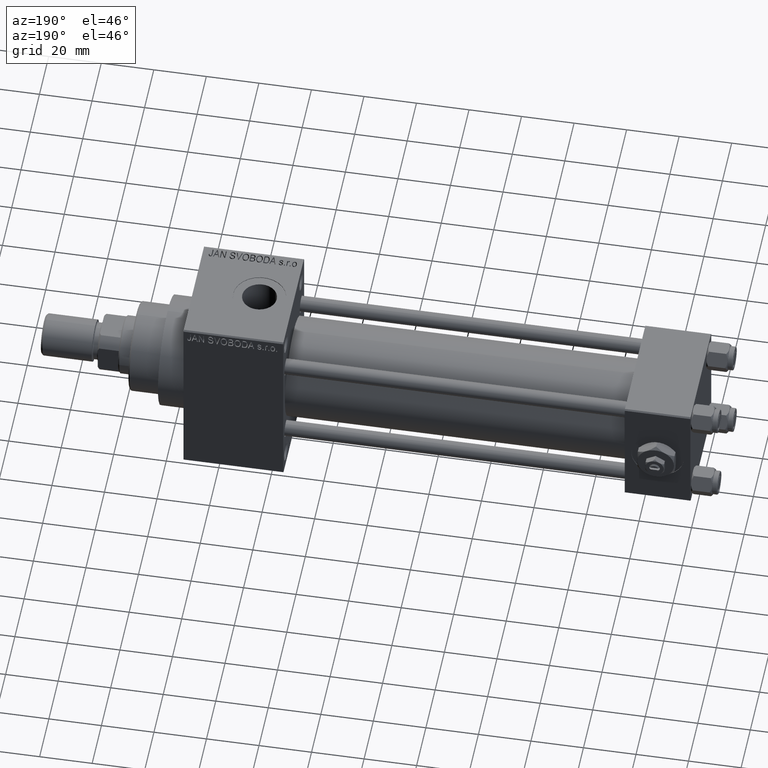
[diagram: clean part render]
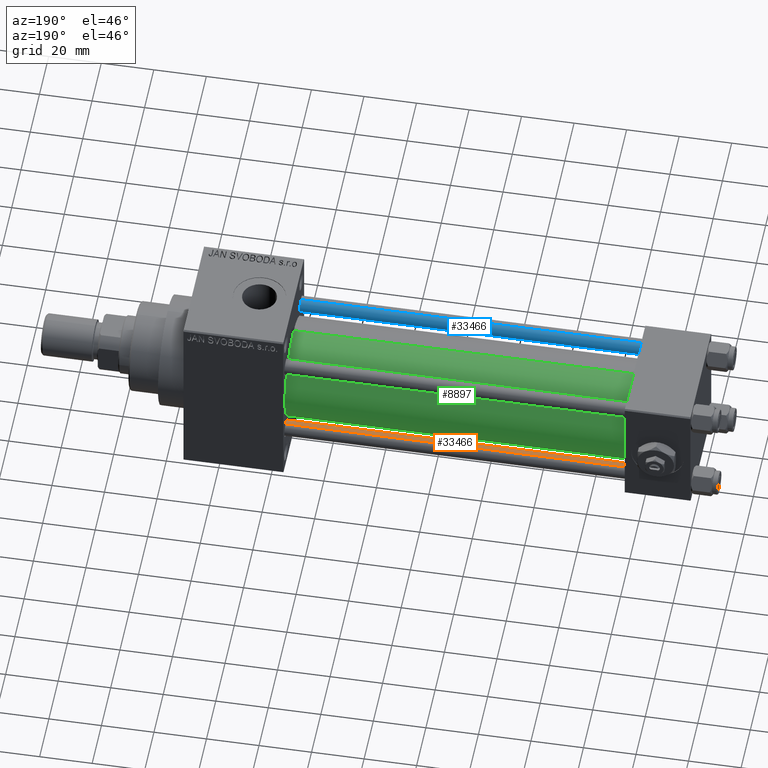
[diagram: same view with three faces highlighted in distinct colors, each labeled with its STEP entity id]
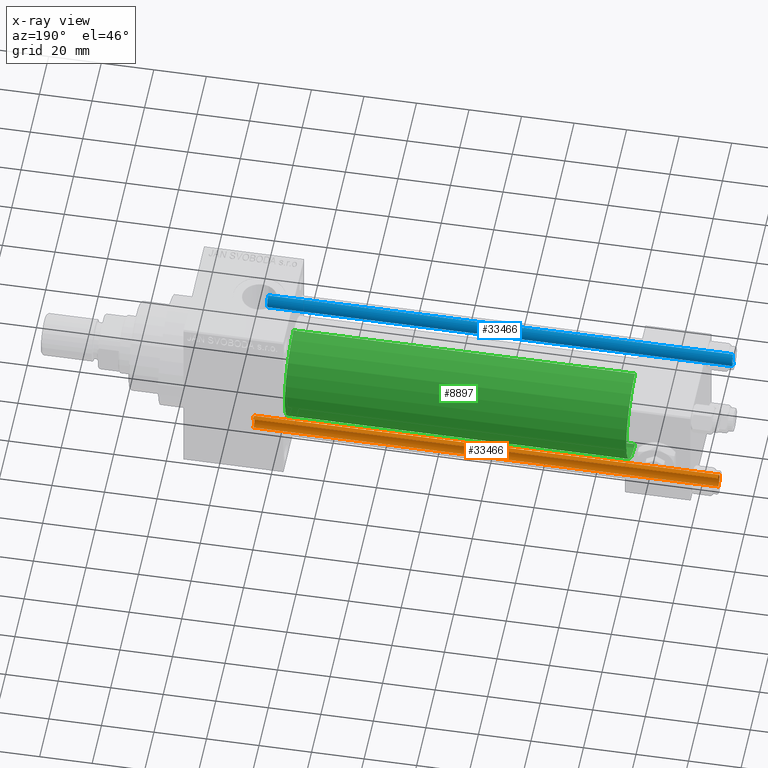
[diagram: x-ray of the same camera — body ghosted, the three highlighted faces saturated]
A machine part, auxiliary view with three faces highlighted in distinct colors.
The next image is the same camera in x-ray (body ghosted, the three faces saturated) — at least one of them is partly hidden behind the body in this view.
Their STEP definitions:

[orange] entity #33466 — the highlighted cylindrical surface (edge-blend (fillet) strip) has radius 3 mm, axis along (1, -0, 0).
#665 = VECTOR ( 'NONE', #10655, 1000.000000000000000 ) ;
#1277 = DIRECTION ( 'NONE',  ( -0.000000000000000000, -0.000000000000000000, -1.000000000000000000 ) ) ;
#1287 = CARTESIAN_POINT ( 'NONE',  ( 3.000000000000000444, 3.673940397442060361E-16, 177.5000000000000000 ) ) ;
#6168 = ORIENTED_EDGE ( 'NONE', *, *, #37607, .F. ) ;
#7503 = EDGE_CURVE ( 'NONE', #31874, #31880, #43418, .T. ) ;
#8998 = EDGE_CURVE ( 'NONE', #11545, #31874, #35223, .T. ) ;
#10655 = DIRECTION ( 'NONE',  ( -0.000000000000000000, -0.000000000000000000, -1.000000000000000000 ) ) ;
#11545 = VERTEX_POINT ( 'NONE', #33688 ) ;
#11826 = FACE_OUTER_BOUND ( 'NONE', #38154, .T. ) ;
#17153 = VERTEX_POINT ( 'NONE', #1287 ) ;
#19174 = ORIENTED_EDGE ( 'NONE', *, *, #7503, .T. ) ;
#19999 = DIRECTION ( 'NONE',  ( -1.000000000000000000, 0.000000000000000000, 0.000000000000000000 ) ) ;
#20246 = CIRCLE ( 'NONE', #47999, 3.000000000000000444 ) ;
#22060 = CARTESIAN_POINT ( 'NONE',  ( 3.000000000000000444, 3.673940397442060361E-16, 178.0000000000000000 ) ) ;
#25037 = AXIS2_PLACEMENT_3D ( 'NONE', #34885, #46297, #19999 ) ;
#27648 = DIRECTION ( 'NONE',  ( 1.000000000000000000, 0.000000000000000000, 0.000000000000000000 ) ) ;
#27780 = CARTESIAN_POINT ( 'NONE',  ( -3.000000000000000444, 0.000000000000000000, 178.0000000000000000 ) ) ;
#31048 = ORIENTED_EDGE ( 'NONE', *, *, #8998, .T. ) ;
#31874 = VERTEX_POINT ( 'NONE', #44043 ) ;
#31880 = VERTEX_POINT ( 'NONE', #36831 ) ;
#32500 = EDGE_CURVE ( 'NONE', #17153, #11545, #20246, .T. ) ;
#33466 = ADVANCED_FACE ( 'NONE', ( #11826 ), #42330, .T. ) ;
#33688 = CARTESIAN_POINT ( 'NONE',  ( -3.000000000000000444, 0.000000000000000000, 177.5000000000000000 ) ) ;
#34885 = CARTESIAN_POINT ( 'NONE',  ( 0.000000000000000000, 0.000000000000000000, 178.0000000000000000 ) ) ;
#35223 = LINE ( 'NONE', #27780, #44282 ) ;
#35335 = CARTESIAN_POINT ( 'NONE',  ( 0.000000000000000000, 0.000000000000000000, 0.5000000000000281997 ) ) ;
#36831 = CARTESIAN_POINT ( 'NONE',  ( 3.000000000000000444, 3.673940397442060361E-16, 0.5000000000000281997 ) ) ;
#37607 = EDGE_CURVE ( 'NONE', #17153, #31880, #40189, .T. ) ;
#38154 = EDGE_LOOP ( 'NONE', ( #6168, #44777, #31048, #19174 ) ) ;
#40189 = LINE ( 'NONE', #22060, #665 ) ;
#40263 = AXIS2_PLACEMENT_3D ( 'NONE', #35335, #43033, #27648 ) ;
#41331 = DIRECTION ( 'NONE',  ( 1.000000000000000000, 0.000000000000000000, 0.000000000000000000 ) ) ;
#42330 = CYLINDRICAL_SURFACE ( 'NONE', #25037, 3.000000000000000444 ) ;
#43033 = DIRECTION ( 'NONE',  ( -0.000000000000000000, -0.000000000000000000, 1.000000000000000000 ) ) ;
#43418 = CIRCLE ( 'NONE', #40263, 3.000000000000000444 ) ;
#44043 = CARTESIAN_POINT ( 'NONE',  ( -3.000000000000000444, 0.000000000000000000, 0.5000000000000281997 ) ) ;
#44282 = VECTOR ( 'NONE', #1277, 1000.000000000000000 ) ;
#44777 = ORIENTED_EDGE ( 'NONE', *, *, #32500, .T. ) ;
#45066 = CARTESIAN_POINT ( 'NONE',  ( 0.000000000000000000, 0.000000000000000000, 177.5000000000000000 ) ) ;
#46297 = DIRECTION ( 'NONE',  ( -0.000000000000000000, -0.000000000000000000, -1.000000000000000000 ) ) ;
#47999 = AXIS2_PLACEMENT_3D ( 'NONE', #45066, #49026, #41331 ) ;
#49026 = DIRECTION ( 'NONE',  ( 0.000000000000000000, 0.000000000000000000, -1.000000000000000000 ) ) ;

[blue] entity #33466 — the highlighted cylindrical surface (edge-blend (fillet) strip) has radius 3 mm, axis along (1, 0, 0).
#665 = VECTOR ( 'NONE', #10655, 1000.000000000000000 ) ;
#1277 = DIRECTION ( 'NONE',  ( -0.000000000000000000, -0.000000000000000000, -1.000000000000000000 ) ) ;
#1287 = CARTESIAN_POINT ( 'NONE',  ( 3.000000000000000444, 3.673940397442060361E-16, 177.5000000000000000 ) ) ;
#6168 = ORIENTED_EDGE ( 'NONE', *, *, #37607, .F. ) ;
#7503 = EDGE_CURVE ( 'NONE', #31874, #31880, #43418, .T. ) ;
#8998 = EDGE_CURVE ( 'NONE', #11545, #31874, #35223, .T. ) ;
#10655 = DIRECTION ( 'NONE',  ( -0.000000000000000000, -0.000000000000000000, -1.000000000000000000 ) ) ;
#11545 = VERTEX_POINT ( 'NONE', #33688 ) ;
#11826 = FACE_OUTER_BOUND ( 'NONE', #38154, .T. ) ;
#17153 = VERTEX_POINT ( 'NONE', #1287 ) ;
#19174 = ORIENTED_EDGE ( 'NONE', *, *, #7503, .T. ) ;
#19999 = DIRECTION ( 'NONE',  ( -1.000000000000000000, 0.000000000000000000, 0.000000000000000000 ) ) ;
#20246 = CIRCLE ( 'NONE', #47999, 3.000000000000000444 ) ;
#22060 = CARTESIAN_POINT ( 'NONE',  ( 3.000000000000000444, 3.673940397442060361E-16, 178.0000000000000000 ) ) ;
#25037 = AXIS2_PLACEMENT_3D ( 'NONE', #34885, #46297, #19999 ) ;
#27648 = DIRECTION ( 'NONE',  ( 1.000000000000000000, 0.000000000000000000, 0.000000000000000000 ) ) ;
#27780 = CARTESIAN_POINT ( 'NONE',  ( -3.000000000000000444, 0.000000000000000000, 178.0000000000000000 ) ) ;
#31048 = ORIENTED_EDGE ( 'NONE', *, *, #8998, .T. ) ;
#31874 = VERTEX_POINT ( 'NONE', #44043 ) ;
#31880 = VERTEX_POINT ( 'NONE', #36831 ) ;
#32500 = EDGE_CURVE ( 'NONE', #17153, #11545, #20246, .T. ) ;
#33466 = ADVANCED_FACE ( 'NONE', ( #11826 ), #42330, .T. ) ;
#33688 = CARTESIAN_POINT ( 'NONE',  ( -3.000000000000000444, 0.000000000000000000, 177.5000000000000000 ) ) ;
#34885 = CARTESIAN_POINT ( 'NONE',  ( 0.000000000000000000, 0.000000000000000000, 178.0000000000000000 ) ) ;
#35223 = LINE ( 'NONE', #27780, #44282 ) ;
#35335 = CARTESIAN_POINT ( 'NONE',  ( 0.000000000000000000, 0.000000000000000000, 0.5000000000000281997 ) ) ;
#36831 = CARTESIAN_POINT ( 'NONE',  ( 3.000000000000000444, 3.673940397442060361E-16, 0.5000000000000281997 ) ) ;
#37607 = EDGE_CURVE ( 'NONE', #17153, #31880, #40189, .T. ) ;
#38154 = EDGE_LOOP ( 'NONE', ( #6168, #44777, #31048, #19174 ) ) ;
#40189 = LINE ( 'NONE', #22060, #665 ) ;
#40263 = AXIS2_PLACEMENT_3D ( 'NONE', #35335, #43033, #27648 ) ;
#41331 = DIRECTION ( 'NONE',  ( 1.000000000000000000, 0.000000000000000000, 0.000000000000000000 ) ) ;
#42330 = CYLINDRICAL_SURFACE ( 'NONE', #25037, 3.000000000000000444 ) ;
#43033 = DIRECTION ( 'NONE',  ( -0.000000000000000000, -0.000000000000000000, 1.000000000000000000 ) ) ;
#43418 = CIRCLE ( 'NONE', #40263, 3.000000000000000444 ) ;
#44043 = CARTESIAN_POINT ( 'NONE',  ( -3.000000000000000444, 0.000000000000000000, 0.5000000000000281997 ) ) ;
#44282 = VECTOR ( 'NONE', #1277, 1000.000000000000000 ) ;
#44777 = ORIENTED_EDGE ( 'NONE', *, *, #32500, .T. ) ;
#45066 = CARTESIAN_POINT ( 'NONE',  ( 0.000000000000000000, 0.000000000000000000, 177.5000000000000000 ) ) ;
#46297 = DIRECTION ( 'NONE',  ( -0.000000000000000000, -0.000000000000000000, -1.000000000000000000 ) ) ;
#47999 = AXIS2_PLACEMENT_3D ( 'NONE', #45066, #49026, #41331 ) ;
#49026 = DIRECTION ( 'NONE',  ( 0.000000000000000000, 0.000000000000000000, -1.000000000000000000 ) ) ;

[green] entity #8897 — the highlighted cylindrical surface (partial cylindrical patch) has radius 19 mm, axis along (-1, -0, -0).
#2282 = CARTESIAN_POINT ( 'NONE',  ( 24.99999999999999289, -2.752562955852396712E-16, -19.00000000000000000 ) ) ;
#2998 = DIRECTION ( 'NONE',  ( -1.000000000000000000, -0.000000000000000000, -0.000000000000000000 ) ) ;
#3240 = CIRCLE ( 'NONE', #46778, 19.00000000000000000 ) ;
#5572 = CIRCLE ( 'NONE', #33275, 19.00000000000000000 ) ;
#7111 = ORIENTED_EDGE ( 'NONE', *, *, #46465, .F. ) ;
#7375 = VERTEX_POINT ( 'NONE', #20697 ) ;
#8862 = ORIENTED_EDGE ( 'NONE', *, *, #12198, .T. ) ;
#8897 = ADVANCED_FACE ( 'NONE', ( #9432 ), #43163, .T. ) ;
#9432 = FACE_OUTER_BOUND ( 'NONE', #29609, .T. ) ;
#10533 = VERTEX_POINT ( 'NONE', #32034 ) ;
#11881 = VECTOR ( 'NONE', #37478, 1000.000000000000000 ) ;
#12198 = EDGE_CURVE ( 'NONE', #39570, #10533, #5572, .T. ) ;
#12669 = CARTESIAN_POINT ( 'NONE',  ( 155.0000000000000000, -2.602085213965210642E-15, 0.000000000000000000 ) ) ;
#13046 = EDGE_CURVE ( 'NONE', #7375, #14056, #3240, .T. ) ;
#13395 = CARTESIAN_POINT ( 'NONE',  ( 155.0000000000000000, -2.602085213965210642E-15, 0.000000000000000000 ) ) ;
#14056 = VERTEX_POINT ( 'NONE', #36962 ) ;
#18626 = DIRECTION ( 'NONE',  ( 1.000000000000000000, -0.000000000000000000, 0.000000000000000000 ) ) ;
#20337 = DIRECTION ( 'NONE',  ( 0.000000000000000000, 0.000000000000000000, 1.000000000000000000 ) ) ;
#20697 = CARTESIAN_POINT ( 'NONE',  ( 155.0000000000000000, -2.752562955852396712E-16, -19.00000000000000000 ) ) ;
#22350 = CARTESIAN_POINT ( 'NONE',  ( 155.0000000000000000, -2.602085213965210642E-15, 19.00000000000000000 ) ) ;
#24159 = ORIENTED_EDGE ( 'NONE', *, *, #42769, .T. ) ;
#26560 = CARTESIAN_POINT ( 'NONE',  ( 24.99999999999999289, -2.602085213965210642E-15, 0.000000000000000000 ) ) ;
#29522 = LINE ( 'NONE', #36469, #48990 ) ;
#29609 = EDGE_LOOP ( 'NONE', ( #44983, #24159, #8862, #7111 ) ) ;
#29993 = AXIS2_PLACEMENT_3D ( 'NONE', #13395, #39692, #20337 ) ;
#30532 = DIRECTION ( 'NONE',  ( 0.000000000000000000, 0.000000000000000000, 1.000000000000000000 ) ) ;
#32034 = CARTESIAN_POINT ( 'NONE',  ( 24.99999999999999289, -2.602085213965210642E-15, 19.00000000000000000 ) ) ;
#33275 = AXIS2_PLACEMENT_3D ( 'NONE', #26560, #18626, #30532 ) ;
#35734 = DIRECTION ( 'NONE',  ( 0.000000000000000000, 0.000000000000000000, -1.000000000000000000 ) ) ;
#36469 = CARTESIAN_POINT ( 'NONE',  ( 155.0000000000000000, -2.752562955852396712E-16, -19.00000000000000000 ) ) ;
#36962 = CARTESIAN_POINT ( 'NONE',  ( 155.0000000000000000, -2.602085213965210642E-15, 19.00000000000000000 ) ) ;
#37478 = DIRECTION ( 'NONE',  ( -1.000000000000000000, -0.000000000000000000, -0.000000000000000000 ) ) ;
#39570 = VERTEX_POINT ( 'NONE', #2282 ) ;
#39692 = DIRECTION ( 'NONE',  ( -1.000000000000000000, -0.000000000000000000, -0.000000000000000000 ) ) ;
#41196 = LINE ( 'NONE', #22350, #11881 ) ;
#42203 = DIRECTION ( 'NONE',  ( 1.000000000000000000, 0.000000000000000000, 0.000000000000000000 ) ) ;
#42769 = EDGE_CURVE ( 'NONE', #7375, #39570, #29522, .T. ) ;
#43163 = CYLINDRICAL_SURFACE ( 'NONE', #29993, 19.00000000000000000 ) ;
#44983 = ORIENTED_EDGE ( 'NONE', *, *, #13046, .F. ) ;
#46465 = EDGE_CURVE ( 'NONE', #14056, #10533, #41196, .T. ) ;
#46778 = AXIS2_PLACEMENT_3D ( 'NONE', #12669, #42203, #35734 ) ;
#48990 = VECTOR ( 'NONE', #2998, 1000.000000000000000 ) ;